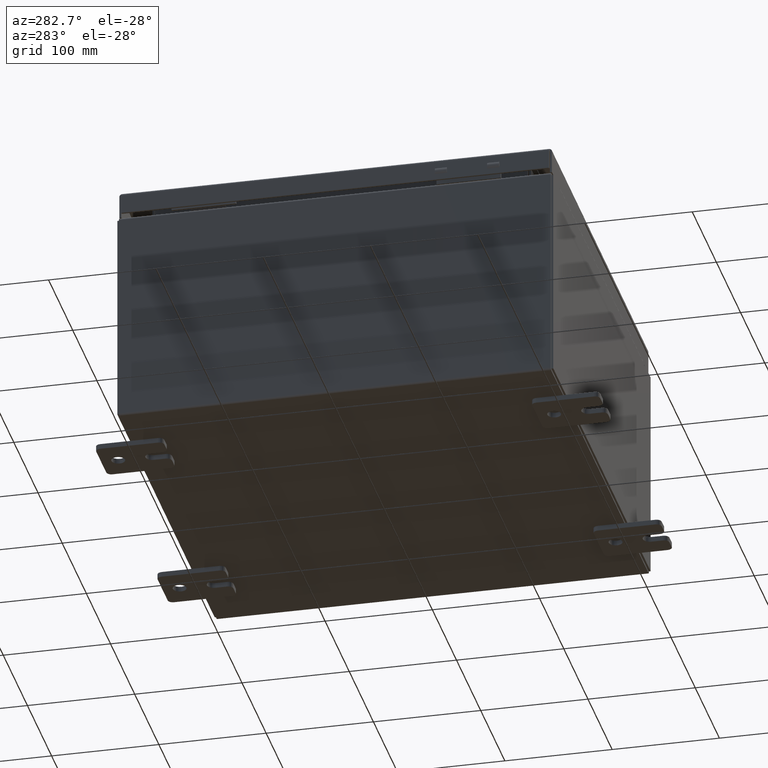
[diagram: clean part render]
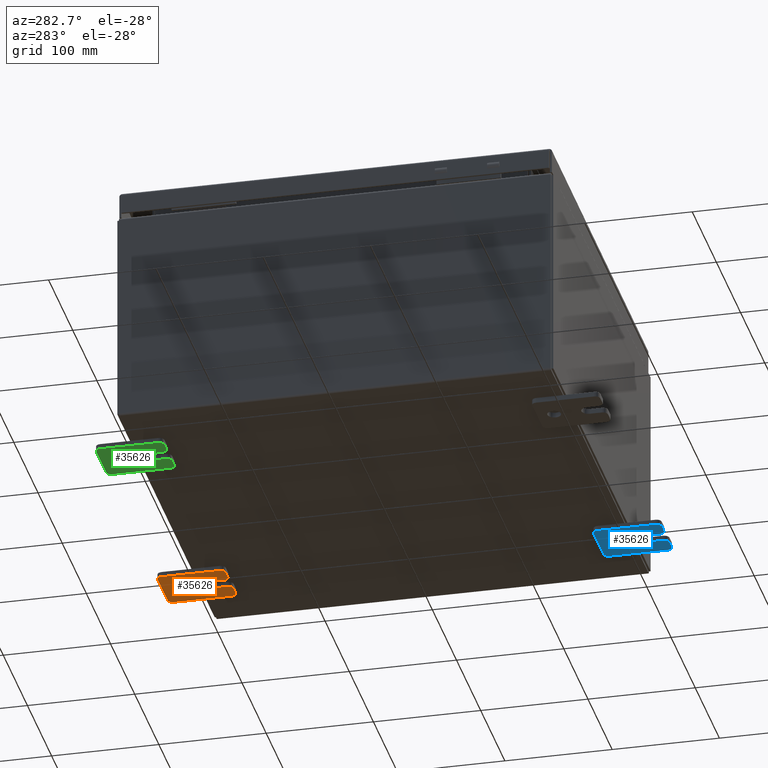
[diagram: same view with three faces highlighted in distinct colors, each labeled with its STEP entity id]
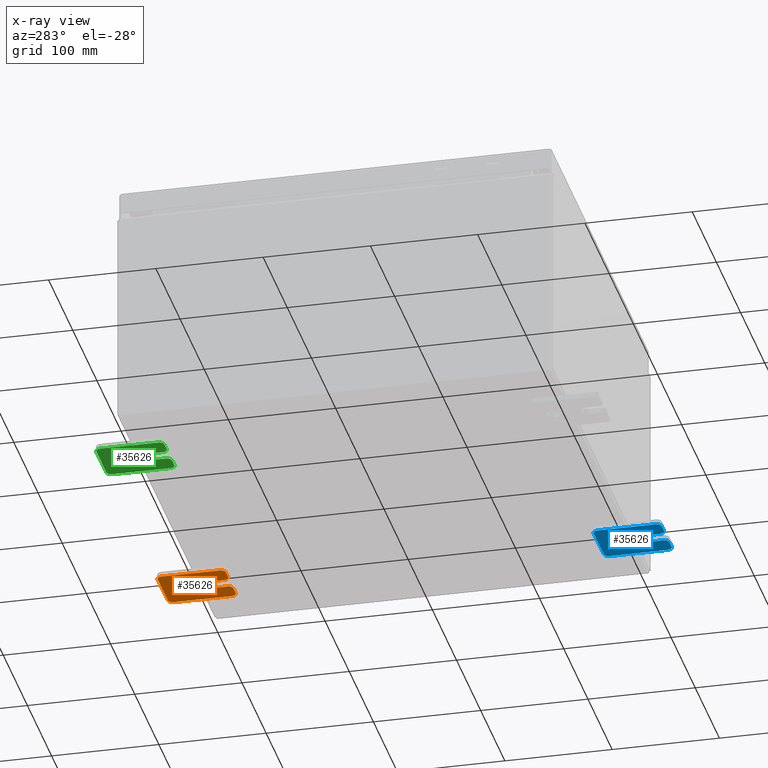
[diagram: x-ray of the same camera — body ghosted, the three highlighted faces saturated]
A machine part, auxiliary view with three faces highlighted in distinct colors.
The next image is the same camera in x-ray (body ghosted, the three faces saturated) — at least one of them is partly hidden behind the body in this view.
Their STEP definitions:

[orange] entity #35626 — the highlighted planar face has unit normal (0, 0, 1).
#1194 = CARTESIAN_POINT ( 'NONE',  ( -0.1880000000000010000, 0.6249999999999988900, -0.2499999999999999200 ) ) ;
#1284 = FACE_BOUND ( 'NONE', #23018, .T. ) ;
#1878 = VECTOR ( 'NONE', #12338, 39.37007874015748100 ) ;
#2096 = VERTEX_POINT ( 'NONE', #27937 ) ;
#2120 = ORIENTED_EDGE ( 'NONE', *, *, #21835, .F. ) ;
#2996 = CARTESIAN_POINT ( 'NONE',  ( -0.1880000000000001900, -0.6249999999999988900, -0.2499999999999998100 ) ) ;
#3333 = CARTESIAN_POINT ( 'NONE',  ( -0.1879999999999997800, -1.060000000000002300, 0.4400000000000018900 ) ) ;
#3515 = ORIENTED_EDGE ( 'NONE', *, *, #11851, .T. ) ;
#4287 = ORIENTED_EDGE ( 'NONE', *, *, #45170, .T. ) ;
#4474 = CARTESIAN_POINT ( 'NONE',  ( -0.1879999999999997800, -1.060000000000004500, -1.000000000000006900 ) ) ;
#4865 = VECTOR ( 'NONE', #28092, 39.37007874015748100 ) ;
#5051 = VERTEX_POINT ( 'NONE', #21113 ) ;
#5749 = EDGE_CURVE ( 'NONE', #24956, #33312, #52178, .T. ) ;
#7839 = VERTEX_POINT ( 'NONE', #61128 ) ;
#8166 = DIRECTION ( 'NONE',  ( 0.0000000000000000000, 0.0000000000000000000, -1.000000000000000000 ) ) ;
#8800 = DIRECTION ( 'NONE',  ( -1.000000000000000000, 6.523827964459549700E-016, 5.163192708025532000E-017 ) ) ;
#8940 = CARTESIAN_POINT ( 'NONE',  ( -0.1880000000000010000, 0.6249999999999988900, 0.0000000000000000000 ) ) ;
#10119 = CARTESIAN_POINT ( 'NONE',  ( -0.1879999999999997800, 1.059999999999995800, 0.8099999999999938400 ) ) ;
#11008 = CARTESIAN_POINT ( 'NONE',  ( -0.1880000000000010000, 0.6249999999999988900, 0.2499999999999999200 ) ) ;
#11653 = ORIENTED_EDGE ( 'NONE', *, *, #55735, .F. ) ;
#11851 = EDGE_CURVE ( 'NONE', #44556, #29896, #15115, .T. ) ;
#12002 = CIRCLE ( 'NONE', #55374, 0.1900000000000011100 ) ;
#12190 = DIRECTION ( 'NONE',  ( 1.000000000000000000, 0.0000000000000000000, 0.0000000000000000000 ) ) ;
#12338 = DIRECTION ( 'NONE',  ( 0.0000000000000000000, -1.000000000000000000, 1.639108796198558100E-015 ) ) ;
#13381 = EDGE_CURVE ( 'NONE', #52888, #7839, #14256, .T. ) ;
#13776 = DIRECTION ( 'NONE',  ( 0.0000000000000000000, 0.0000000000000000000, -1.000000000000000000 ) ) ;
#14256 = CIRCLE ( 'NONE', #33649, 0.1900000000000011100 ) ;
#14653 = LINE ( 'NONE', #46109, #1878 ) ;
#14775 = AXIS2_PLACEMENT_3D ( 'NONE', #37654, #8800, #42573 ) ;
#14946 = CARTESIAN_POINT ( 'NONE',  ( -0.1879999999999997800, -1.250000000000002200, 0.8099999999999981700 ) ) ;
#14951 = DIRECTION ( 'NONE',  ( 0.0000000000000000000, 0.0000000000000000000, -1.000000000000000000 ) ) ;
#14964 = VERTEX_POINT ( 'NONE', #11008 ) ;
#15115 = CIRCLE ( 'NONE', #46186, 0.1900000000000011100 ) ;
#15694 = CARTESIAN_POINT ( 'NONE',  ( -0.1879999999999997800, -1.060000000000004500, -0.8100000000000047200 ) ) ;
#15904 = DIRECTION ( 'NONE',  ( 1.000000000000000000, 0.0000000000000000000, -5.163192708025532000E-017 ) ) ;
#18219 = EDGE_CURVE ( 'NONE', #22271, #40064, #60083, .T. ) ;
#18753 = ORIENTED_EDGE ( 'NONE', *, *, #18219, .F. ) ;
#18782 = DIRECTION ( 'NONE',  ( 6.556435184794182400E-016, 1.000000000000000000, 0.0000000000000000000 ) ) ;
#18828 = CARTESIAN_POINT ( 'NONE',  ( -0.1879999999999997800, -1.060000000000001200, 0.8099999999999970600 ) ) ;
#19078 = LINE ( 'NONE', #45841, #43246 ) ;
#19356 = VERTEX_POINT ( 'NONE', #38332 ) ;
#19379 = VECTOR ( 'NONE', #18782, 39.37007874015748100 ) ;
#19794 = EDGE_CURVE ( 'NONE', #19356, #7839, #46424, .T. ) ;
#20562 = DIRECTION ( 'NONE',  ( 0.0000000000000000000, 0.0000000000000000000, -1.000000000000000000 ) ) ;
#21113 = CARTESIAN_POINT ( 'NONE',  ( -0.1879999999999997800, -1.060000000000001200, 0.9999999999999992200 ) ) ;
#21835 = EDGE_CURVE ( 'NONE', #40290, #32405, #19078, .T. ) ;
#21849 = DIRECTION ( 'NONE',  ( 0.0000000000000000000, -1.639108796198553600E-015, -1.000000000000000000 ) ) ;
#21870 = DIRECTION ( 'NONE',  ( 0.0000000000000000000, -1.639108796198553600E-015, -1.000000000000000000 ) ) ;
#22271 = VERTEX_POINT ( 'NONE', #14946 ) ;
#22326 = CIRCLE ( 'NONE', #38747, 0.2499999999999999200 ) ;
#22408 = EDGE_CURVE ( 'NONE', #29510, #40064, #54678, .T. ) ;
#22828 = VERTEX_POINT ( 'NONE', #1194 ) ;
#23018 = EDGE_LOOP ( 'NONE', ( #32905, #4287 ) ) ;
#23682 = DIRECTION ( 'NONE',  ( -1.000000000000000000, -0.0000000000000000000, -0.0000000000000000000 ) ) ;
#23690 = DIRECTION ( 'NONE',  ( 0.0000000000000000000, 7.189073667537492800E-016, -1.000000000000000000 ) ) ;
#24956 = VERTEX_POINT ( 'NONE', #36764 ) ;
#24989 = DIRECTION ( 'NONE',  ( -1.000000000000000000, -0.0000000000000000000, -0.0000000000000000000 ) ) ;
#25172 = EDGE_CURVE ( 'NONE', #19356, #32405, #57643, .T. ) ;
#25786 = AXIS2_PLACEMENT_3D ( 'NONE', #8940, #42732, #13776 ) ;
#26018 = EDGE_CURVE ( 'NONE', #40290, #2096, #52325, .T. ) ;
#27937 = CARTESIAN_POINT ( 'NONE',  ( -0.1879999999999997800, -1.250000000000005600, -0.8100000000000047200 ) ) ;
#28092 = DIRECTION ( 'NONE',  ( 0.0000000000000000000, 1.639108796198553600E-015, 1.000000000000000000 ) ) ;
#29149 = ORIENTED_EDGE ( 'NONE', *, *, #62432, .F. ) ;
#29510 = VERTEX_POINT ( 'NONE', #44304 ) ;
#29896 = VERTEX_POINT ( 'NONE', #41698 ) ;
#30102 = VECTOR ( 'NONE', #31873, 39.37007874015748100 ) ;
#30552 = ORIENTED_EDGE ( 'NONE', *, *, #19794, .F. ) ;
#30804 = EDGE_CURVE ( 'NONE', #22271, #5051, #12002, .T. ) ;
#30930 = AXIS2_PLACEMENT_3D ( 'NONE', #15694, #49503, #20562 ) ;
#31271 = EDGE_CURVE ( 'NONE', #33312, #29896, #42941, .T. ) ;
#31481 = DIRECTION ( 'NONE',  ( 0.0000000000000000000, 1.000000000000000000, -1.639108796198558100E-015 ) ) ;
#31873 = DIRECTION ( 'NONE',  ( -6.556435184794182400E-016, -1.000000000000000000, -1.639108796198545600E-016 ) ) ;
#32217 = LINE ( 'NONE', #47704, #19379 ) ;
#32405 = VERTEX_POINT ( 'NONE', #56187 ) ;
#32905 = ORIENTED_EDGE ( 'NONE', *, *, #41697, .T. ) ;
#32929 = CARTESIAN_POINT ( 'NONE',  ( -0.1879999999999997800, 1.249999999999994700, -1.000000000000010000 ) ) ;
#33045 = CIRCLE ( 'NONE', #25786, 0.2499999999999999200 ) ;
#33133 = ORIENTED_EDGE ( 'NONE', *, *, #26018, .T. ) ;
#33184 = ORIENTED_EDGE ( 'NONE', *, *, #30804, .T. ) ;
#33203 = AXIS2_PLACEMENT_3D ( 'NONE', #3333, #37013, #8166 ) ;
#33312 = VERTEX_POINT ( 'NONE', #50628 ) ;
#33649 = AXIS2_PLACEMENT_3D ( 'NONE', #10119, #43900, #14951 ) ;
#35626 = ADVANCED_FACE ( 'NONE', ( #1284, #38164 ), #41095, .F. ) ;
#35907 = CARTESIAN_POINT ( 'NONE',  ( -0.1879999999999997800, -1.250000000000003300, 0.4400000000000018900 ) ) ;
#36192 = CARTESIAN_POINT ( 'NONE',  ( -0.1879999999999997800, -1.250000000000004400, -0.4400000000000007800 ) ) ;
#36480 = CARTESIAN_POINT ( 'NONE',  ( -0.1879999999999997800, 1.059999999999996900, 0.9999999999999947800 ) ) ;
#36764 = CARTESIAN_POINT ( 'NONE',  ( -0.1880000000000001900, -0.6249999999999988900, 0.2500000000000008900 ) ) ;
#37013 = DIRECTION ( 'NONE',  ( -1.000000000000000000, -0.0000000000000000000, -0.0000000000000000000 ) ) ;
#37654 = CARTESIAN_POINT ( 'NONE',  ( -0.1880000000000001900, -0.6249999999999988900, 0.0000000000000000000 ) ) ;
#38164 = FACE_OUTER_BOUND ( 'NONE', #52254, .T. ) ;
#38332 = CARTESIAN_POINT ( 'NONE',  ( -0.1879999999999997800, 1.249999999999994700, -0.8100000000000091600 ) ) ;
#38663 = ORIENTED_EDGE ( 'NONE', *, *, #46164, .F. ) ;
#38747 = AXIS2_PLACEMENT_3D ( 'NONE', #44860, #15904, #49717 ) ;
#40064 = VERTEX_POINT ( 'NONE', #35907 ) ;
#40290 = VERTEX_POINT ( 'NONE', #4474 ) ;
#41060 = CARTESIAN_POINT ( 'NONE',  ( -0.1879999999999997800, -1.250000000000002200, 0.9999999999999992200 ) ) ;
#41095 = PLANE ( 'NONE',  #42935 ) ;
#41697 = EDGE_CURVE ( 'NONE', #22828, #14964, #33045, .T. ) ;
#41698 = CARTESIAN_POINT ( 'NONE',  ( -0.1880000000000004700, -1.060000000000003400, -0.2499999999999998100 ) ) ;
#42171 = ORIENTED_EDGE ( 'NONE', *, *, #31271, .F. ) ;
#42573 = DIRECTION ( 'NONE',  ( -6.829619984160660000E-016, -1.000000000000000000, 0.0000000000000000000 ) ) ;
#42732 = DIRECTION ( 'NONE',  ( 1.000000000000000000, 0.0000000000000000000, -5.163192708025532000E-017 ) ) ;
#42935 = AXIS2_PLACEMENT_3D ( 'NONE', #55500, #12190, #45972 ) ;
#42941 = LINE ( 'NONE', #2996, #30102 ) ;
#43113 = VECTOR ( 'NONE', #21870, 39.37007874015748100 ) ;
#43246 = VECTOR ( 'NONE', #31481, 39.37007874015748100 ) ;
#43869 = ORIENTED_EDGE ( 'NONE', *, *, #22408, .T. ) ;
#43900 = DIRECTION ( 'NONE',  ( -1.000000000000000000, -0.0000000000000000000, -0.0000000000000000000 ) ) ;
#44304 = CARTESIAN_POINT ( 'NONE',  ( -0.1880000000000004700, -1.060000000000002300, 0.2500000000000008900 ) ) ;
#44556 = VERTEX_POINT ( 'NONE', #36192 ) ;
#44644 = LINE ( 'NONE', #41060, #43113 ) ;
#44860 = CARTESIAN_POINT ( 'NONE',  ( -0.1880000000000010000, 0.6249999999999988900, 0.0000000000000000000 ) ) ;
#45024 = ORIENTED_EDGE ( 'NONE', *, *, #5749, .F. ) ;
#45170 = EDGE_CURVE ( 'NONE', #14964, #22828, #22326, .T. ) ;
#45712 = CARTESIAN_POINT ( 'NONE',  ( -0.1879999999999997800, -1.250000000000002200, 0.9999999999999992200 ) ) ;
#45737 = VECTOR ( 'NONE', #21849, 39.37007874015748100 ) ;
#45841 = CARTESIAN_POINT ( 'NONE',  ( -0.1879999999999997800, -1.250000000000005600, -1.000000000000005800 ) ) ;
#45972 = DIRECTION ( 'NONE',  ( 0.0000000000000000000, 0.0000000000000000000, -1.000000000000000000 ) ) ;
#46109 = CARTESIAN_POINT ( 'NONE',  ( -0.1879999999999997800, 1.249999999999997800, 0.9999999999999947800 ) ) ;
#46164 = EDGE_CURVE ( 'NONE', #52888, #5051, #14653, .T. ) ;
#46186 = AXIS2_PLACEMENT_3D ( 'NONE', #53923, #24989, #58736 ) ;
#46424 = LINE ( 'NONE', #32929, #4865 ) ;
#47704 = CARTESIAN_POINT ( 'NONE',  ( -0.1880000000000005800, -1.250000000000003300, 0.2500000000000008900 ) ) ;
#49503 = DIRECTION ( 'NONE',  ( -1.000000000000000000, -0.0000000000000000000, -0.0000000000000000000 ) ) ;
#49717 = DIRECTION ( 'NONE',  ( 0.0000000000000000000, 0.0000000000000000000, -1.000000000000000000 ) ) ;
#50628 = CARTESIAN_POINT ( 'NONE',  ( -0.1880000000000001900, -0.6249999999999988900, -0.2499999999999998100 ) ) ;
#52173 = ORIENTED_EDGE ( 'NONE', *, *, #13381, .T. ) ;
#52178 = CIRCLE ( 'NONE', #14775, 0.2499999999999999200 ) ;
#52254 = EDGE_LOOP ( 'NONE', ( #18753, #33184, #38663, #52173, #30552, #61363, #2120, #33133, #11653, #3515, #42171, #45024, #29149, #43869 ) ) ;
#52325 = CIRCLE ( 'NONE', #30930, 0.1900000000000011100 ) ;
#52626 = CARTESIAN_POINT ( 'NONE',  ( -0.1879999999999997800, 1.059999999999993600, -0.8100000000000091600 ) ) ;
#52633 = DIRECTION ( 'NONE',  ( -1.000000000000000000, -0.0000000000000000000, -0.0000000000000000000 ) ) ;
#52888 = VERTEX_POINT ( 'NONE', #36480 ) ;
#53923 = CARTESIAN_POINT ( 'NONE',  ( -0.1879999999999997800, -1.060000000000003400, -0.4400000000000007800 ) ) ;
#54678 = CIRCLE ( 'NONE', #33203, 0.1900000000000011400 ) ;
#55374 = AXIS2_PLACEMENT_3D ( 'NONE', #18828, #52633, #23690 ) ;
#55500 = CARTESIAN_POINT ( 'NONE',  ( -0.1879999999999997800, 0.0000000000000000000, 0.0000000000000000000 ) ) ;
#55735 = EDGE_CURVE ( 'NONE', #44556, #2096, #44644, .T. ) ;
#56187 = CARTESIAN_POINT ( 'NONE',  ( -0.1879999999999997800, 1.059999999999993600, -1.000000000000010000 ) ) ;
#57440 = DIRECTION ( 'NONE',  ( 0.0000000000000000000, 0.0000000000000000000, -1.000000000000000000 ) ) ;
#57643 = CIRCLE ( 'NONE', #59222, 0.1900000000000011100 ) ;
#58736 = DIRECTION ( 'NONE',  ( 0.0000000000000000000, 7.189073667537492800E-016, -1.000000000000000000 ) ) ;
#59222 = AXIS2_PLACEMENT_3D ( 'NONE', #52626, #23682, #57440 ) ;
#60083 = LINE ( 'NONE', #45712, #45737 ) ;
#61128 = CARTESIAN_POINT ( 'NONE',  ( -0.1879999999999997800, 1.249999999999996700, 0.8099999999999938400 ) ) ;
#61363 = ORIENTED_EDGE ( 'NONE', *, *, #25172, .T. ) ;
#62432 = EDGE_CURVE ( 'NONE', #29510, #24956, #32217, .T. ) ;

[blue] entity #35626 — the highlighted planar face has unit normal (0, 0, 1).
#1194 = CARTESIAN_POINT ( 'NONE',  ( -0.1880000000000010000, 0.6249999999999988900, -0.2499999999999999200 ) ) ;
#1284 = FACE_BOUND ( 'NONE', #23018, .T. ) ;
#1878 = VECTOR ( 'NONE', #12338, 39.37007874015748100 ) ;
#2096 = VERTEX_POINT ( 'NONE', #27937 ) ;
#2120 = ORIENTED_EDGE ( 'NONE', *, *, #21835, .F. ) ;
#2996 = CARTESIAN_POINT ( 'NONE',  ( -0.1880000000000001900, -0.6249999999999988900, -0.2499999999999998100 ) ) ;
#3333 = CARTESIAN_POINT ( 'NONE',  ( -0.1879999999999997800, -1.060000000000002300, 0.4400000000000018900 ) ) ;
#3515 = ORIENTED_EDGE ( 'NONE', *, *, #11851, .T. ) ;
#4287 = ORIENTED_EDGE ( 'NONE', *, *, #45170, .T. ) ;
#4474 = CARTESIAN_POINT ( 'NONE',  ( -0.1879999999999997800, -1.060000000000004500, -1.000000000000006900 ) ) ;
#4865 = VECTOR ( 'NONE', #28092, 39.37007874015748100 ) ;
#5051 = VERTEX_POINT ( 'NONE', #21113 ) ;
#5749 = EDGE_CURVE ( 'NONE', #24956, #33312, #52178, .T. ) ;
#7839 = VERTEX_POINT ( 'NONE', #61128 ) ;
#8166 = DIRECTION ( 'NONE',  ( 0.0000000000000000000, 0.0000000000000000000, -1.000000000000000000 ) ) ;
#8800 = DIRECTION ( 'NONE',  ( -1.000000000000000000, 6.523827964459549700E-016, 5.163192708025532000E-017 ) ) ;
#8940 = CARTESIAN_POINT ( 'NONE',  ( -0.1880000000000010000, 0.6249999999999988900, 0.0000000000000000000 ) ) ;
#10119 = CARTESIAN_POINT ( 'NONE',  ( -0.1879999999999997800, 1.059999999999995800, 0.8099999999999938400 ) ) ;
#11008 = CARTESIAN_POINT ( 'NONE',  ( -0.1880000000000010000, 0.6249999999999988900, 0.2499999999999999200 ) ) ;
#11653 = ORIENTED_EDGE ( 'NONE', *, *, #55735, .F. ) ;
#11851 = EDGE_CURVE ( 'NONE', #44556, #29896, #15115, .T. ) ;
#12002 = CIRCLE ( 'NONE', #55374, 0.1900000000000011100 ) ;
#12190 = DIRECTION ( 'NONE',  ( 1.000000000000000000, 0.0000000000000000000, 0.0000000000000000000 ) ) ;
#12338 = DIRECTION ( 'NONE',  ( 0.0000000000000000000, -1.000000000000000000, 1.639108796198558100E-015 ) ) ;
#13381 = EDGE_CURVE ( 'NONE', #52888, #7839, #14256, .T. ) ;
#13776 = DIRECTION ( 'NONE',  ( 0.0000000000000000000, 0.0000000000000000000, -1.000000000000000000 ) ) ;
#14256 = CIRCLE ( 'NONE', #33649, 0.1900000000000011100 ) ;
#14653 = LINE ( 'NONE', #46109, #1878 ) ;
#14775 = AXIS2_PLACEMENT_3D ( 'NONE', #37654, #8800, #42573 ) ;
#14946 = CARTESIAN_POINT ( 'NONE',  ( -0.1879999999999997800, -1.250000000000002200, 0.8099999999999981700 ) ) ;
#14951 = DIRECTION ( 'NONE',  ( 0.0000000000000000000, 0.0000000000000000000, -1.000000000000000000 ) ) ;
#14964 = VERTEX_POINT ( 'NONE', #11008 ) ;
#15115 = CIRCLE ( 'NONE', #46186, 0.1900000000000011100 ) ;
#15694 = CARTESIAN_POINT ( 'NONE',  ( -0.1879999999999997800, -1.060000000000004500, -0.8100000000000047200 ) ) ;
#15904 = DIRECTION ( 'NONE',  ( 1.000000000000000000, 0.0000000000000000000, -5.163192708025532000E-017 ) ) ;
#18219 = EDGE_CURVE ( 'NONE', #22271, #40064, #60083, .T. ) ;
#18753 = ORIENTED_EDGE ( 'NONE', *, *, #18219, .F. ) ;
#18782 = DIRECTION ( 'NONE',  ( 6.556435184794182400E-016, 1.000000000000000000, 0.0000000000000000000 ) ) ;
#18828 = CARTESIAN_POINT ( 'NONE',  ( -0.1879999999999997800, -1.060000000000001200, 0.8099999999999970600 ) ) ;
#19078 = LINE ( 'NONE', #45841, #43246 ) ;
#19356 = VERTEX_POINT ( 'NONE', #38332 ) ;
#19379 = VECTOR ( 'NONE', #18782, 39.37007874015748100 ) ;
#19794 = EDGE_CURVE ( 'NONE', #19356, #7839, #46424, .T. ) ;
#20562 = DIRECTION ( 'NONE',  ( 0.0000000000000000000, 0.0000000000000000000, -1.000000000000000000 ) ) ;
#21113 = CARTESIAN_POINT ( 'NONE',  ( -0.1879999999999997800, -1.060000000000001200, 0.9999999999999992200 ) ) ;
#21835 = EDGE_CURVE ( 'NONE', #40290, #32405, #19078, .T. ) ;
#21849 = DIRECTION ( 'NONE',  ( 0.0000000000000000000, -1.639108796198553600E-015, -1.000000000000000000 ) ) ;
#21870 = DIRECTION ( 'NONE',  ( 0.0000000000000000000, -1.639108796198553600E-015, -1.000000000000000000 ) ) ;
#22271 = VERTEX_POINT ( 'NONE', #14946 ) ;
#22326 = CIRCLE ( 'NONE', #38747, 0.2499999999999999200 ) ;
#22408 = EDGE_CURVE ( 'NONE', #29510, #40064, #54678, .T. ) ;
#22828 = VERTEX_POINT ( 'NONE', #1194 ) ;
#23018 = EDGE_LOOP ( 'NONE', ( #32905, #4287 ) ) ;
#23682 = DIRECTION ( 'NONE',  ( -1.000000000000000000, -0.0000000000000000000, -0.0000000000000000000 ) ) ;
#23690 = DIRECTION ( 'NONE',  ( 0.0000000000000000000, 7.189073667537492800E-016, -1.000000000000000000 ) ) ;
#24956 = VERTEX_POINT ( 'NONE', #36764 ) ;
#24989 = DIRECTION ( 'NONE',  ( -1.000000000000000000, -0.0000000000000000000, -0.0000000000000000000 ) ) ;
#25172 = EDGE_CURVE ( 'NONE', #19356, #32405, #57643, .T. ) ;
#25786 = AXIS2_PLACEMENT_3D ( 'NONE', #8940, #42732, #13776 ) ;
#26018 = EDGE_CURVE ( 'NONE', #40290, #2096, #52325, .T. ) ;
#27937 = CARTESIAN_POINT ( 'NONE',  ( -0.1879999999999997800, -1.250000000000005600, -0.8100000000000047200 ) ) ;
#28092 = DIRECTION ( 'NONE',  ( 0.0000000000000000000, 1.639108796198553600E-015, 1.000000000000000000 ) ) ;
#29149 = ORIENTED_EDGE ( 'NONE', *, *, #62432, .F. ) ;
#29510 = VERTEX_POINT ( 'NONE', #44304 ) ;
#29896 = VERTEX_POINT ( 'NONE', #41698 ) ;
#30102 = VECTOR ( 'NONE', #31873, 39.37007874015748100 ) ;
#30552 = ORIENTED_EDGE ( 'NONE', *, *, #19794, .F. ) ;
#30804 = EDGE_CURVE ( 'NONE', #22271, #5051, #12002, .T. ) ;
#30930 = AXIS2_PLACEMENT_3D ( 'NONE', #15694, #49503, #20562 ) ;
#31271 = EDGE_CURVE ( 'NONE', #33312, #29896, #42941, .T. ) ;
#31481 = DIRECTION ( 'NONE',  ( 0.0000000000000000000, 1.000000000000000000, -1.639108796198558100E-015 ) ) ;
#31873 = DIRECTION ( 'NONE',  ( -6.556435184794182400E-016, -1.000000000000000000, -1.639108796198545600E-016 ) ) ;
#32217 = LINE ( 'NONE', #47704, #19379 ) ;
#32405 = VERTEX_POINT ( 'NONE', #56187 ) ;
#32905 = ORIENTED_EDGE ( 'NONE', *, *, #41697, .T. ) ;
#32929 = CARTESIAN_POINT ( 'NONE',  ( -0.1879999999999997800, 1.249999999999994700, -1.000000000000010000 ) ) ;
#33045 = CIRCLE ( 'NONE', #25786, 0.2499999999999999200 ) ;
#33133 = ORIENTED_EDGE ( 'NONE', *, *, #26018, .T. ) ;
#33184 = ORIENTED_EDGE ( 'NONE', *, *, #30804, .T. ) ;
#33203 = AXIS2_PLACEMENT_3D ( 'NONE', #3333, #37013, #8166 ) ;
#33312 = VERTEX_POINT ( 'NONE', #50628 ) ;
#33649 = AXIS2_PLACEMENT_3D ( 'NONE', #10119, #43900, #14951 ) ;
#35626 = ADVANCED_FACE ( 'NONE', ( #1284, #38164 ), #41095, .F. ) ;
#35907 = CARTESIAN_POINT ( 'NONE',  ( -0.1879999999999997800, -1.250000000000003300, 0.4400000000000018900 ) ) ;
#36192 = CARTESIAN_POINT ( 'NONE',  ( -0.1879999999999997800, -1.250000000000004400, -0.4400000000000007800 ) ) ;
#36480 = CARTESIAN_POINT ( 'NONE',  ( -0.1879999999999997800, 1.059999999999996900, 0.9999999999999947800 ) ) ;
#36764 = CARTESIAN_POINT ( 'NONE',  ( -0.1880000000000001900, -0.6249999999999988900, 0.2500000000000008900 ) ) ;
#37013 = DIRECTION ( 'NONE',  ( -1.000000000000000000, -0.0000000000000000000, -0.0000000000000000000 ) ) ;
#37654 = CARTESIAN_POINT ( 'NONE',  ( -0.1880000000000001900, -0.6249999999999988900, 0.0000000000000000000 ) ) ;
#38164 = FACE_OUTER_BOUND ( 'NONE', #52254, .T. ) ;
#38332 = CARTESIAN_POINT ( 'NONE',  ( -0.1879999999999997800, 1.249999999999994700, -0.8100000000000091600 ) ) ;
#38663 = ORIENTED_EDGE ( 'NONE', *, *, #46164, .F. ) ;
#38747 = AXIS2_PLACEMENT_3D ( 'NONE', #44860, #15904, #49717 ) ;
#40064 = VERTEX_POINT ( 'NONE', #35907 ) ;
#40290 = VERTEX_POINT ( 'NONE', #4474 ) ;
#41060 = CARTESIAN_POINT ( 'NONE',  ( -0.1879999999999997800, -1.250000000000002200, 0.9999999999999992200 ) ) ;
#41095 = PLANE ( 'NONE',  #42935 ) ;
#41697 = EDGE_CURVE ( 'NONE', #22828, #14964, #33045, .T. ) ;
#41698 = CARTESIAN_POINT ( 'NONE',  ( -0.1880000000000004700, -1.060000000000003400, -0.2499999999999998100 ) ) ;
#42171 = ORIENTED_EDGE ( 'NONE', *, *, #31271, .F. ) ;
#42573 = DIRECTION ( 'NONE',  ( -6.829619984160660000E-016, -1.000000000000000000, 0.0000000000000000000 ) ) ;
#42732 = DIRECTION ( 'NONE',  ( 1.000000000000000000, 0.0000000000000000000, -5.163192708025532000E-017 ) ) ;
#42935 = AXIS2_PLACEMENT_3D ( 'NONE', #55500, #12190, #45972 ) ;
#42941 = LINE ( 'NONE', #2996, #30102 ) ;
#43113 = VECTOR ( 'NONE', #21870, 39.37007874015748100 ) ;
#43246 = VECTOR ( 'NONE', #31481, 39.37007874015748100 ) ;
#43869 = ORIENTED_EDGE ( 'NONE', *, *, #22408, .T. ) ;
#43900 = DIRECTION ( 'NONE',  ( -1.000000000000000000, -0.0000000000000000000, -0.0000000000000000000 ) ) ;
#44304 = CARTESIAN_POINT ( 'NONE',  ( -0.1880000000000004700, -1.060000000000002300, 0.2500000000000008900 ) ) ;
#44556 = VERTEX_POINT ( 'NONE', #36192 ) ;
#44644 = LINE ( 'NONE', #41060, #43113 ) ;
#44860 = CARTESIAN_POINT ( 'NONE',  ( -0.1880000000000010000, 0.6249999999999988900, 0.0000000000000000000 ) ) ;
#45024 = ORIENTED_EDGE ( 'NONE', *, *, #5749, .F. ) ;
#45170 = EDGE_CURVE ( 'NONE', #14964, #22828, #22326, .T. ) ;
#45712 = CARTESIAN_POINT ( 'NONE',  ( -0.1879999999999997800, -1.250000000000002200, 0.9999999999999992200 ) ) ;
#45737 = VECTOR ( 'NONE', #21849, 39.37007874015748100 ) ;
#45841 = CARTESIAN_POINT ( 'NONE',  ( -0.1879999999999997800, -1.250000000000005600, -1.000000000000005800 ) ) ;
#45972 = DIRECTION ( 'NONE',  ( 0.0000000000000000000, 0.0000000000000000000, -1.000000000000000000 ) ) ;
#46109 = CARTESIAN_POINT ( 'NONE',  ( -0.1879999999999997800, 1.249999999999997800, 0.9999999999999947800 ) ) ;
#46164 = EDGE_CURVE ( 'NONE', #52888, #5051, #14653, .T. ) ;
#46186 = AXIS2_PLACEMENT_3D ( 'NONE', #53923, #24989, #58736 ) ;
#46424 = LINE ( 'NONE', #32929, #4865 ) ;
#47704 = CARTESIAN_POINT ( 'NONE',  ( -0.1880000000000005800, -1.250000000000003300, 0.2500000000000008900 ) ) ;
#49503 = DIRECTION ( 'NONE',  ( -1.000000000000000000, -0.0000000000000000000, -0.0000000000000000000 ) ) ;
#49717 = DIRECTION ( 'NONE',  ( 0.0000000000000000000, 0.0000000000000000000, -1.000000000000000000 ) ) ;
#50628 = CARTESIAN_POINT ( 'NONE',  ( -0.1880000000000001900, -0.6249999999999988900, -0.2499999999999998100 ) ) ;
#52173 = ORIENTED_EDGE ( 'NONE', *, *, #13381, .T. ) ;
#52178 = CIRCLE ( 'NONE', #14775, 0.2499999999999999200 ) ;
#52254 = EDGE_LOOP ( 'NONE', ( #18753, #33184, #38663, #52173, #30552, #61363, #2120, #33133, #11653, #3515, #42171, #45024, #29149, #43869 ) ) ;
#52325 = CIRCLE ( 'NONE', #30930, 0.1900000000000011100 ) ;
#52626 = CARTESIAN_POINT ( 'NONE',  ( -0.1879999999999997800, 1.059999999999993600, -0.8100000000000091600 ) ) ;
#52633 = DIRECTION ( 'NONE',  ( -1.000000000000000000, -0.0000000000000000000, -0.0000000000000000000 ) ) ;
#52888 = VERTEX_POINT ( 'NONE', #36480 ) ;
#53923 = CARTESIAN_POINT ( 'NONE',  ( -0.1879999999999997800, -1.060000000000003400, -0.4400000000000007800 ) ) ;
#54678 = CIRCLE ( 'NONE', #33203, 0.1900000000000011400 ) ;
#55374 = AXIS2_PLACEMENT_3D ( 'NONE', #18828, #52633, #23690 ) ;
#55500 = CARTESIAN_POINT ( 'NONE',  ( -0.1879999999999997800, 0.0000000000000000000, 0.0000000000000000000 ) ) ;
#55735 = EDGE_CURVE ( 'NONE', #44556, #2096, #44644, .T. ) ;
#56187 = CARTESIAN_POINT ( 'NONE',  ( -0.1879999999999997800, 1.059999999999993600, -1.000000000000010000 ) ) ;
#57440 = DIRECTION ( 'NONE',  ( 0.0000000000000000000, 0.0000000000000000000, -1.000000000000000000 ) ) ;
#57643 = CIRCLE ( 'NONE', #59222, 0.1900000000000011100 ) ;
#58736 = DIRECTION ( 'NONE',  ( 0.0000000000000000000, 7.189073667537492800E-016, -1.000000000000000000 ) ) ;
#59222 = AXIS2_PLACEMENT_3D ( 'NONE', #52626, #23682, #57440 ) ;
#60083 = LINE ( 'NONE', #45712, #45737 ) ;
#61128 = CARTESIAN_POINT ( 'NONE',  ( -0.1879999999999997800, 1.249999999999996700, 0.8099999999999938400 ) ) ;
#61363 = ORIENTED_EDGE ( 'NONE', *, *, #25172, .T. ) ;
#62432 = EDGE_CURVE ( 'NONE', #29510, #24956, #32217, .T. ) ;

[green] entity #35626 — the highlighted planar face has unit normal (0, 0, 1).
#1194 = CARTESIAN_POINT ( 'NONE',  ( -0.1880000000000010000, 0.6249999999999988900, -0.2499999999999999200 ) ) ;
#1284 = FACE_BOUND ( 'NONE', #23018, .T. ) ;
#1878 = VECTOR ( 'NONE', #12338, 39.37007874015748100 ) ;
#2096 = VERTEX_POINT ( 'NONE', #27937 ) ;
#2120 = ORIENTED_EDGE ( 'NONE', *, *, #21835, .F. ) ;
#2996 = CARTESIAN_POINT ( 'NONE',  ( -0.1880000000000001900, -0.6249999999999988900, -0.2499999999999998100 ) ) ;
#3333 = CARTESIAN_POINT ( 'NONE',  ( -0.1879999999999997800, -1.060000000000002300, 0.4400000000000018900 ) ) ;
#3515 = ORIENTED_EDGE ( 'NONE', *, *, #11851, .T. ) ;
#4287 = ORIENTED_EDGE ( 'NONE', *, *, #45170, .T. ) ;
#4474 = CARTESIAN_POINT ( 'NONE',  ( -0.1879999999999997800, -1.060000000000004500, -1.000000000000006900 ) ) ;
#4865 = VECTOR ( 'NONE', #28092, 39.37007874015748100 ) ;
#5051 = VERTEX_POINT ( 'NONE', #21113 ) ;
#5749 = EDGE_CURVE ( 'NONE', #24956, #33312, #52178, .T. ) ;
#7839 = VERTEX_POINT ( 'NONE', #61128 ) ;
#8166 = DIRECTION ( 'NONE',  ( 0.0000000000000000000, 0.0000000000000000000, -1.000000000000000000 ) ) ;
#8800 = DIRECTION ( 'NONE',  ( -1.000000000000000000, 6.523827964459549700E-016, 5.163192708025532000E-017 ) ) ;
#8940 = CARTESIAN_POINT ( 'NONE',  ( -0.1880000000000010000, 0.6249999999999988900, 0.0000000000000000000 ) ) ;
#10119 = CARTESIAN_POINT ( 'NONE',  ( -0.1879999999999997800, 1.059999999999995800, 0.8099999999999938400 ) ) ;
#11008 = CARTESIAN_POINT ( 'NONE',  ( -0.1880000000000010000, 0.6249999999999988900, 0.2499999999999999200 ) ) ;
#11653 = ORIENTED_EDGE ( 'NONE', *, *, #55735, .F. ) ;
#11851 = EDGE_CURVE ( 'NONE', #44556, #29896, #15115, .T. ) ;
#12002 = CIRCLE ( 'NONE', #55374, 0.1900000000000011100 ) ;
#12190 = DIRECTION ( 'NONE',  ( 1.000000000000000000, 0.0000000000000000000, 0.0000000000000000000 ) ) ;
#12338 = DIRECTION ( 'NONE',  ( 0.0000000000000000000, -1.000000000000000000, 1.639108796198558100E-015 ) ) ;
#13381 = EDGE_CURVE ( 'NONE', #52888, #7839, #14256, .T. ) ;
#13776 = DIRECTION ( 'NONE',  ( 0.0000000000000000000, 0.0000000000000000000, -1.000000000000000000 ) ) ;
#14256 = CIRCLE ( 'NONE', #33649, 0.1900000000000011100 ) ;
#14653 = LINE ( 'NONE', #46109, #1878 ) ;
#14775 = AXIS2_PLACEMENT_3D ( 'NONE', #37654, #8800, #42573 ) ;
#14946 = CARTESIAN_POINT ( 'NONE',  ( -0.1879999999999997800, -1.250000000000002200, 0.8099999999999981700 ) ) ;
#14951 = DIRECTION ( 'NONE',  ( 0.0000000000000000000, 0.0000000000000000000, -1.000000000000000000 ) ) ;
#14964 = VERTEX_POINT ( 'NONE', #11008 ) ;
#15115 = CIRCLE ( 'NONE', #46186, 0.1900000000000011100 ) ;
#15694 = CARTESIAN_POINT ( 'NONE',  ( -0.1879999999999997800, -1.060000000000004500, -0.8100000000000047200 ) ) ;
#15904 = DIRECTION ( 'NONE',  ( 1.000000000000000000, 0.0000000000000000000, -5.163192708025532000E-017 ) ) ;
#18219 = EDGE_CURVE ( 'NONE', #22271, #40064, #60083, .T. ) ;
#18753 = ORIENTED_EDGE ( 'NONE', *, *, #18219, .F. ) ;
#18782 = DIRECTION ( 'NONE',  ( 6.556435184794182400E-016, 1.000000000000000000, 0.0000000000000000000 ) ) ;
#18828 = CARTESIAN_POINT ( 'NONE',  ( -0.1879999999999997800, -1.060000000000001200, 0.8099999999999970600 ) ) ;
#19078 = LINE ( 'NONE', #45841, #43246 ) ;
#19356 = VERTEX_POINT ( 'NONE', #38332 ) ;
#19379 = VECTOR ( 'NONE', #18782, 39.37007874015748100 ) ;
#19794 = EDGE_CURVE ( 'NONE', #19356, #7839, #46424, .T. ) ;
#20562 = DIRECTION ( 'NONE',  ( 0.0000000000000000000, 0.0000000000000000000, -1.000000000000000000 ) ) ;
#21113 = CARTESIAN_POINT ( 'NONE',  ( -0.1879999999999997800, -1.060000000000001200, 0.9999999999999992200 ) ) ;
#21835 = EDGE_CURVE ( 'NONE', #40290, #32405, #19078, .T. ) ;
#21849 = DIRECTION ( 'NONE',  ( 0.0000000000000000000, -1.639108796198553600E-015, -1.000000000000000000 ) ) ;
#21870 = DIRECTION ( 'NONE',  ( 0.0000000000000000000, -1.639108796198553600E-015, -1.000000000000000000 ) ) ;
#22271 = VERTEX_POINT ( 'NONE', #14946 ) ;
#22326 = CIRCLE ( 'NONE', #38747, 0.2499999999999999200 ) ;
#22408 = EDGE_CURVE ( 'NONE', #29510, #40064, #54678, .T. ) ;
#22828 = VERTEX_POINT ( 'NONE', #1194 ) ;
#23018 = EDGE_LOOP ( 'NONE', ( #32905, #4287 ) ) ;
#23682 = DIRECTION ( 'NONE',  ( -1.000000000000000000, -0.0000000000000000000, -0.0000000000000000000 ) ) ;
#23690 = DIRECTION ( 'NONE',  ( 0.0000000000000000000, 7.189073667537492800E-016, -1.000000000000000000 ) ) ;
#24956 = VERTEX_POINT ( 'NONE', #36764 ) ;
#24989 = DIRECTION ( 'NONE',  ( -1.000000000000000000, -0.0000000000000000000, -0.0000000000000000000 ) ) ;
#25172 = EDGE_CURVE ( 'NONE', #19356, #32405, #57643, .T. ) ;
#25786 = AXIS2_PLACEMENT_3D ( 'NONE', #8940, #42732, #13776 ) ;
#26018 = EDGE_CURVE ( 'NONE', #40290, #2096, #52325, .T. ) ;
#27937 = CARTESIAN_POINT ( 'NONE',  ( -0.1879999999999997800, -1.250000000000005600, -0.8100000000000047200 ) ) ;
#28092 = DIRECTION ( 'NONE',  ( 0.0000000000000000000, 1.639108796198553600E-015, 1.000000000000000000 ) ) ;
#29149 = ORIENTED_EDGE ( 'NONE', *, *, #62432, .F. ) ;
#29510 = VERTEX_POINT ( 'NONE', #44304 ) ;
#29896 = VERTEX_POINT ( 'NONE', #41698 ) ;
#30102 = VECTOR ( 'NONE', #31873, 39.37007874015748100 ) ;
#30552 = ORIENTED_EDGE ( 'NONE', *, *, #19794, .F. ) ;
#30804 = EDGE_CURVE ( 'NONE', #22271, #5051, #12002, .T. ) ;
#30930 = AXIS2_PLACEMENT_3D ( 'NONE', #15694, #49503, #20562 ) ;
#31271 = EDGE_CURVE ( 'NONE', #33312, #29896, #42941, .T. ) ;
#31481 = DIRECTION ( 'NONE',  ( 0.0000000000000000000, 1.000000000000000000, -1.639108796198558100E-015 ) ) ;
#31873 = DIRECTION ( 'NONE',  ( -6.556435184794182400E-016, -1.000000000000000000, -1.639108796198545600E-016 ) ) ;
#32217 = LINE ( 'NONE', #47704, #19379 ) ;
#32405 = VERTEX_POINT ( 'NONE', #56187 ) ;
#32905 = ORIENTED_EDGE ( 'NONE', *, *, #41697, .T. ) ;
#32929 = CARTESIAN_POINT ( 'NONE',  ( -0.1879999999999997800, 1.249999999999994700, -1.000000000000010000 ) ) ;
#33045 = CIRCLE ( 'NONE', #25786, 0.2499999999999999200 ) ;
#33133 = ORIENTED_EDGE ( 'NONE', *, *, #26018, .T. ) ;
#33184 = ORIENTED_EDGE ( 'NONE', *, *, #30804, .T. ) ;
#33203 = AXIS2_PLACEMENT_3D ( 'NONE', #3333, #37013, #8166 ) ;
#33312 = VERTEX_POINT ( 'NONE', #50628 ) ;
#33649 = AXIS2_PLACEMENT_3D ( 'NONE', #10119, #43900, #14951 ) ;
#35626 = ADVANCED_FACE ( 'NONE', ( #1284, #38164 ), #41095, .F. ) ;
#35907 = CARTESIAN_POINT ( 'NONE',  ( -0.1879999999999997800, -1.250000000000003300, 0.4400000000000018900 ) ) ;
#36192 = CARTESIAN_POINT ( 'NONE',  ( -0.1879999999999997800, -1.250000000000004400, -0.4400000000000007800 ) ) ;
#36480 = CARTESIAN_POINT ( 'NONE',  ( -0.1879999999999997800, 1.059999999999996900, 0.9999999999999947800 ) ) ;
#36764 = CARTESIAN_POINT ( 'NONE',  ( -0.1880000000000001900, -0.6249999999999988900, 0.2500000000000008900 ) ) ;
#37013 = DIRECTION ( 'NONE',  ( -1.000000000000000000, -0.0000000000000000000, -0.0000000000000000000 ) ) ;
#37654 = CARTESIAN_POINT ( 'NONE',  ( -0.1880000000000001900, -0.6249999999999988900, 0.0000000000000000000 ) ) ;
#38164 = FACE_OUTER_BOUND ( 'NONE', #52254, .T. ) ;
#38332 = CARTESIAN_POINT ( 'NONE',  ( -0.1879999999999997800, 1.249999999999994700, -0.8100000000000091600 ) ) ;
#38663 = ORIENTED_EDGE ( 'NONE', *, *, #46164, .F. ) ;
#38747 = AXIS2_PLACEMENT_3D ( 'NONE', #44860, #15904, #49717 ) ;
#40064 = VERTEX_POINT ( 'NONE', #35907 ) ;
#40290 = VERTEX_POINT ( 'NONE', #4474 ) ;
#41060 = CARTESIAN_POINT ( 'NONE',  ( -0.1879999999999997800, -1.250000000000002200, 0.9999999999999992200 ) ) ;
#41095 = PLANE ( 'NONE',  #42935 ) ;
#41697 = EDGE_CURVE ( 'NONE', #22828, #14964, #33045, .T. ) ;
#41698 = CARTESIAN_POINT ( 'NONE',  ( -0.1880000000000004700, -1.060000000000003400, -0.2499999999999998100 ) ) ;
#42171 = ORIENTED_EDGE ( 'NONE', *, *, #31271, .F. ) ;
#42573 = DIRECTION ( 'NONE',  ( -6.829619984160660000E-016, -1.000000000000000000, 0.0000000000000000000 ) ) ;
#42732 = DIRECTION ( 'NONE',  ( 1.000000000000000000, 0.0000000000000000000, -5.163192708025532000E-017 ) ) ;
#42935 = AXIS2_PLACEMENT_3D ( 'NONE', #55500, #12190, #45972 ) ;
#42941 = LINE ( 'NONE', #2996, #30102 ) ;
#43113 = VECTOR ( 'NONE', #21870, 39.37007874015748100 ) ;
#43246 = VECTOR ( 'NONE', #31481, 39.37007874015748100 ) ;
#43869 = ORIENTED_EDGE ( 'NONE', *, *, #22408, .T. ) ;
#43900 = DIRECTION ( 'NONE',  ( -1.000000000000000000, -0.0000000000000000000, -0.0000000000000000000 ) ) ;
#44304 = CARTESIAN_POINT ( 'NONE',  ( -0.1880000000000004700, -1.060000000000002300, 0.2500000000000008900 ) ) ;
#44556 = VERTEX_POINT ( 'NONE', #36192 ) ;
#44644 = LINE ( 'NONE', #41060, #43113 ) ;
#44860 = CARTESIAN_POINT ( 'NONE',  ( -0.1880000000000010000, 0.6249999999999988900, 0.0000000000000000000 ) ) ;
#45024 = ORIENTED_EDGE ( 'NONE', *, *, #5749, .F. ) ;
#45170 = EDGE_CURVE ( 'NONE', #14964, #22828, #22326, .T. ) ;
#45712 = CARTESIAN_POINT ( 'NONE',  ( -0.1879999999999997800, -1.250000000000002200, 0.9999999999999992200 ) ) ;
#45737 = VECTOR ( 'NONE', #21849, 39.37007874015748100 ) ;
#45841 = CARTESIAN_POINT ( 'NONE',  ( -0.1879999999999997800, -1.250000000000005600, -1.000000000000005800 ) ) ;
#45972 = DIRECTION ( 'NONE',  ( 0.0000000000000000000, 0.0000000000000000000, -1.000000000000000000 ) ) ;
#46109 = CARTESIAN_POINT ( 'NONE',  ( -0.1879999999999997800, 1.249999999999997800, 0.9999999999999947800 ) ) ;
#46164 = EDGE_CURVE ( 'NONE', #52888, #5051, #14653, .T. ) ;
#46186 = AXIS2_PLACEMENT_3D ( 'NONE', #53923, #24989, #58736 ) ;
#46424 = LINE ( 'NONE', #32929, #4865 ) ;
#47704 = CARTESIAN_POINT ( 'NONE',  ( -0.1880000000000005800, -1.250000000000003300, 0.2500000000000008900 ) ) ;
#49503 = DIRECTION ( 'NONE',  ( -1.000000000000000000, -0.0000000000000000000, -0.0000000000000000000 ) ) ;
#49717 = DIRECTION ( 'NONE',  ( 0.0000000000000000000, 0.0000000000000000000, -1.000000000000000000 ) ) ;
#50628 = CARTESIAN_POINT ( 'NONE',  ( -0.1880000000000001900, -0.6249999999999988900, -0.2499999999999998100 ) ) ;
#52173 = ORIENTED_EDGE ( 'NONE', *, *, #13381, .T. ) ;
#52178 = CIRCLE ( 'NONE', #14775, 0.2499999999999999200 ) ;
#52254 = EDGE_LOOP ( 'NONE', ( #18753, #33184, #38663, #52173, #30552, #61363, #2120, #33133, #11653, #3515, #42171, #45024, #29149, #43869 ) ) ;
#52325 = CIRCLE ( 'NONE', #30930, 0.1900000000000011100 ) ;
#52626 = CARTESIAN_POINT ( 'NONE',  ( -0.1879999999999997800, 1.059999999999993600, -0.8100000000000091600 ) ) ;
#52633 = DIRECTION ( 'NONE',  ( -1.000000000000000000, -0.0000000000000000000, -0.0000000000000000000 ) ) ;
#52888 = VERTEX_POINT ( 'NONE', #36480 ) ;
#53923 = CARTESIAN_POINT ( 'NONE',  ( -0.1879999999999997800, -1.060000000000003400, -0.4400000000000007800 ) ) ;
#54678 = CIRCLE ( 'NONE', #33203, 0.1900000000000011400 ) ;
#55374 = AXIS2_PLACEMENT_3D ( 'NONE', #18828, #52633, #23690 ) ;
#55500 = CARTESIAN_POINT ( 'NONE',  ( -0.1879999999999997800, 0.0000000000000000000, 0.0000000000000000000 ) ) ;
#55735 = EDGE_CURVE ( 'NONE', #44556, #2096, #44644, .T. ) ;
#56187 = CARTESIAN_POINT ( 'NONE',  ( -0.1879999999999997800, 1.059999999999993600, -1.000000000000010000 ) ) ;
#57440 = DIRECTION ( 'NONE',  ( 0.0000000000000000000, 0.0000000000000000000, -1.000000000000000000 ) ) ;
#57643 = CIRCLE ( 'NONE', #59222, 0.1900000000000011100 ) ;
#58736 = DIRECTION ( 'NONE',  ( 0.0000000000000000000, 7.189073667537492800E-016, -1.000000000000000000 ) ) ;
#59222 = AXIS2_PLACEMENT_3D ( 'NONE', #52626, #23682, #57440 ) ;
#60083 = LINE ( 'NONE', #45712, #45737 ) ;
#61128 = CARTESIAN_POINT ( 'NONE',  ( -0.1879999999999997800, 1.249999999999996700, 0.8099999999999938400 ) ) ;
#61363 = ORIENTED_EDGE ( 'NONE', *, *, #25172, .T. ) ;
#62432 = EDGE_CURVE ( 'NONE', #29510, #24956, #32217, .T. ) ;